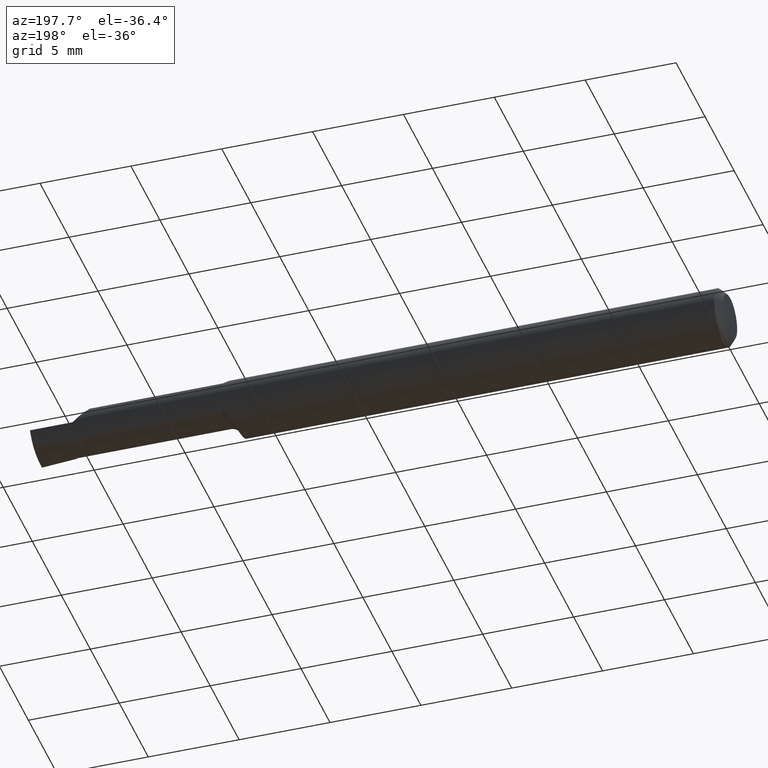
[diagram: clean part render]
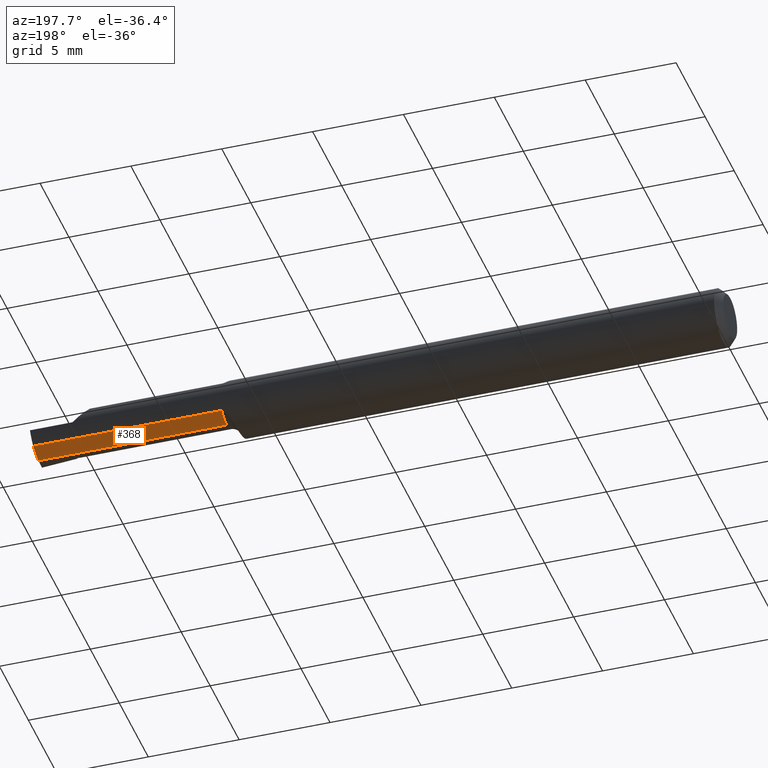
[diagram: same view with one face highlighted and labeled with its STEP entity id]
A machine part, auxiliary view. The second image highlights one B-rep face of the part: STEP entity #368.
In plain terms, the highlighted cylindrical surface (edge-blend (fillet) strip) has radius 1.2205 mm, axis along (-1, -0, -0).
Its self-contained STEP definition (entity closure, byte-faithful):
#6 = VECTOR ( 'NONE', #550, 39.37007874015748143 ) ;
#11 = CYLINDRICAL_SURFACE ( 'NONE', #221, 0.04805000000000001631 ) ;
#17 = ORIENTED_EDGE ( 'NONE', *, *, #408, .F. ) ;
#56 = VECTOR ( 'NONE', #762, 39.37007874015748143 ) ;
#65 = DIRECTION ( 'NONE',  ( 0.000000000000000000, 0.000000000000000000, 1.000000000000000000 ) ) ;
#85 = CARTESIAN_POINT ( 'NONE',  ( 1.415000000000000036, 0.01839999999999999275, -0.04805000000000000243 ) ) ;
#88 = VERTEX_POINT ( 'NONE', #671 ) ;
#117 = EDGE_CURVE ( 'NONE', #516, #539, #610, .T. ) ;
#134 = VERTEX_POINT ( 'NONE', #85 ) ;
#154 = EDGE_CURVE ( 'NONE', #134, #440, #381, .T. ) ;
#172 = CARTESIAN_POINT ( 'NONE',  ( 0.000000000000000000, 0.01839999999999999969, 0.000000000000000000 ) ) ;
#177 = FACE_OUTER_BOUND ( 'NONE', #407, .T. ) ;
#211 = ORIENTED_EDGE ( 'NONE', *, *, #117, .F. ) ;
#221 = AXIS2_PLACEMENT_3D ( 'NONE', #172, #414, #65 ) ;
#227 = CARTESIAN_POINT ( 'NONE',  ( 1.500000000000000444, 0.01839999999999999275, -0.04805000000000000243 ) ) ;
#237 = CARTESIAN_POINT ( 'NONE',  ( 1.085000000000000187, 0.01839999999999999969, 0.000000000000000000 ) ) ;
#257 = ORIENTED_EDGE ( 'NONE', *, *, #621, .T. ) ;
#307 = EDGE_CURVE ( 'NONE', #88, #134, #752, .T. ) ;
#350 = CARTESIAN_POINT ( 'NONE',  ( 1.492509240448229857, 0.04299473640227058358, -0.04320958667840199552 ) ) ;
#357 = CARTESIAN_POINT ( 'NONE',  ( 1.492252812611470691, 0.03117368152160943096, -0.04805000000000001631 ) ) ;
#358 = ORIENTED_EDGE ( 'NONE', *, *, #154, .T. ) ;
#368 = ADVANCED_FACE ( 'NONE', ( #177 ), #11, .T. ) ;
#376 = AXIS2_PLACEMENT_3D ( 'NONE', #237, #652, #468 ) ;
#377 =( BOUNDED_CURVE ( )  B_SPLINE_CURVE ( 3, ( #471, #350, #357, #536 ),
 .UNSPECIFIED., .F., .T. ) 
 B_SPLINE_CURVE_WITH_KNOTS ( ( 4, 4 ),
 ( 5.728406034261026569, 6.505699533271609880 ),
 .UNSPECIFIED. ) 
 CURVE ( )  GEOMETRIC_REPRESENTATION_ITEM ( )  RATIONAL_B_SPLINE_CURVE ( ( 1.000000000000000000, 0.9502818019828913609, 0.9502818019828913609, 1.000000000000000000 ) ) 
 REPRESENTATION_ITEM ( '' )  );
#381 = LINE ( 'NONE', #674, #756 ) ;
#407 = EDGE_LOOP ( 'NONE', ( #649, #358, #17, #211, #257 ) ) ;
#408 = EDGE_CURVE ( 'NONE', #539, #440, #453, .T. ) ;
#410 = CARTESIAN_POINT ( 'NONE',  ( 1.085000000000000187, 0.05209999999999993109, -0.03425072991922958193 ) ) ;
#414 = DIRECTION ( 'NONE',  ( -1.000000000000000000, -0.000000000000000000, -0.000000000000000000 ) ) ;
#438 = DIRECTION ( 'NONE',  ( -1.000000000000000000, -0.000000000000000000, -0.000000000000000000 ) ) ;
#440 = VERTEX_POINT ( 'NONE', #698 ) ;
#453 = CIRCLE ( 'NONE', #376, 0.04805000000000003713 ) ;
#468 = DIRECTION ( 'NONE',  ( 0.000000000000000000, 0.000000000000000000, 1.000000000000000000 ) ) ;
#471 = CARTESIAN_POINT ( 'NONE',  ( 1.493326047240406185, 0.05209999999999995191, -0.03425072991922953336 ) ) ;
#488 = CARTESIAN_POINT ( 'NONE',  ( 1.250000000000000000, 0.05209999999999995191, -0.03425072991922953336 ) ) ;
#516 = VERTEX_POINT ( 'NONE', #636 ) ;
#536 = CARTESIAN_POINT ( 'NONE',  ( 1.492595011120021908, 0.01839999999999999275, -0.04805000000000000243 ) ) ;
#539 = VERTEX_POINT ( 'NONE', #410 ) ;
#550 = DIRECTION ( 'NONE',  ( -1.000000000000000000, -0.000000000000000000, -0.000000000000000000 ) ) ;
#610 = LINE ( 'NONE', #488, #6 ) ;
#621 = EDGE_CURVE ( 'NONE', #516, #88, #377, .T. ) ;
#636 = CARTESIAN_POINT ( 'NONE',  ( 1.493326047240406185, 0.05209999999999995191, -0.03425072991922953336 ) ) ;
#649 = ORIENTED_EDGE ( 'NONE', *, *, #307, .T. ) ;
#652 = DIRECTION ( 'NONE',  ( -1.000000000000000000, -0.000000000000000000, -0.000000000000000000 ) ) ;
#671 = CARTESIAN_POINT ( 'NONE',  ( 1.492595011120021908, 0.01839999999999999275, -0.04805000000000000243 ) ) ;
#674 = CARTESIAN_POINT ( 'NONE',  ( 0.000000000000000000, 0.01840000000000000663, -0.04805000000000001631 ) ) ;
#698 = CARTESIAN_POINT ( 'NONE',  ( 1.085000000000000187, 0.01840000000000001010, -0.04805000000000003713 ) ) ;
#752 = LINE ( 'NONE', #227, #56 ) ;
#756 = VECTOR ( 'NONE', #438, 39.37007874015748143 ) ;
#762 = DIRECTION ( 'NONE',  ( -1.000000000000000000, -0.000000000000000000, -0.000000000000000000 ) ) ;